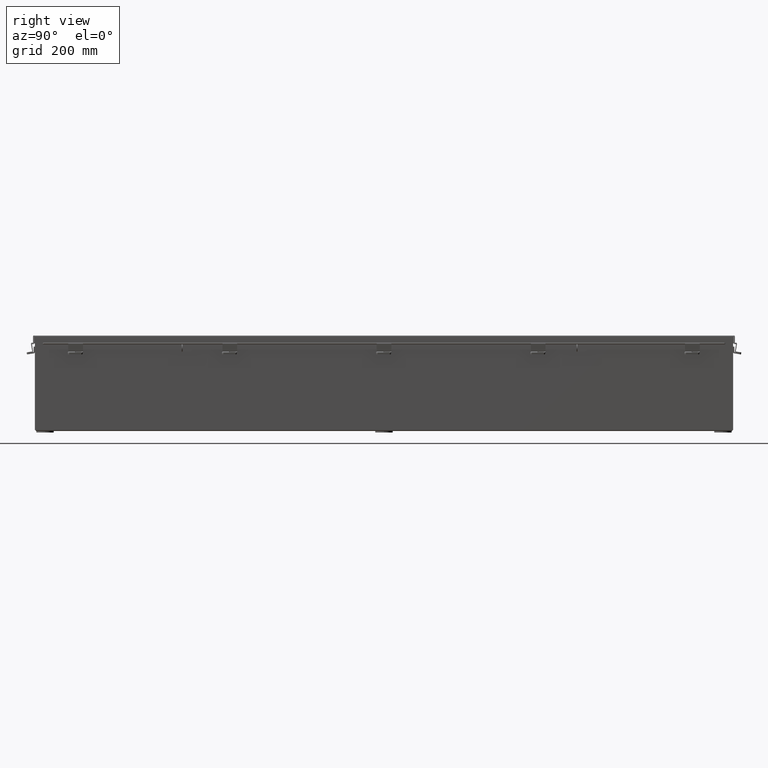
[diagram: clean part render]
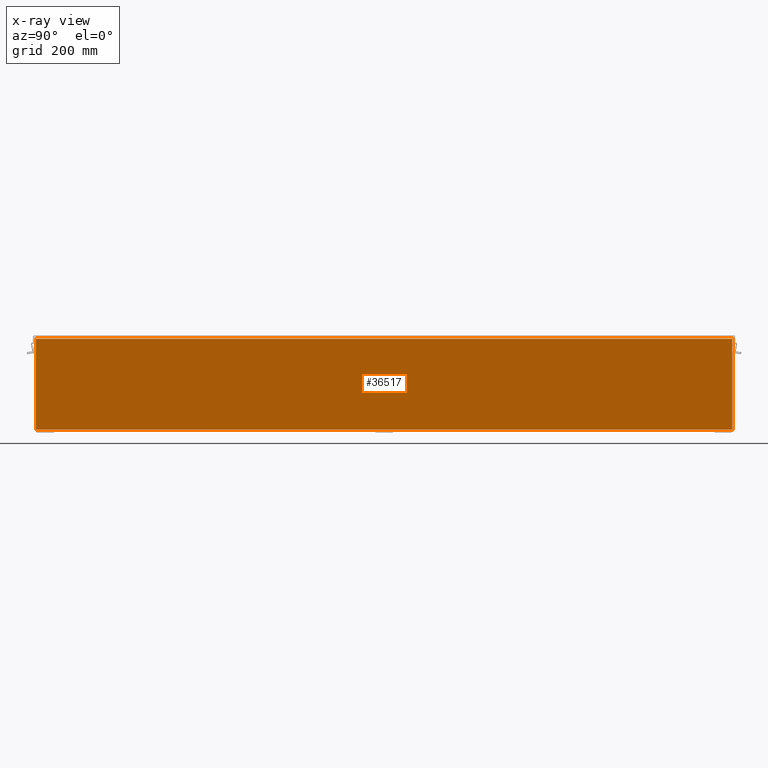
[diagram: x-ray — body ghosted, one internal face saturated and labeled with its STEP entity id]
A machine part, right view, then the same camera in x-ray: the body is ghosted and one INTERNAL B-rep face — a face not visible from any outside direction — is saturated and labeled: STEP entity #36517.
In plain terms, the highlighted planar face has unit normal (-1, 0, 0).
Its self-contained STEP definition (entity closure, byte-faithful):
#596 = LINE ( 'NONE', #42318, #8458 ) ;
#2064 = LINE ( 'NONE', #33826, #18795 ) ;
#2289 = DIRECTION ( 'NONE',  ( -0.0000000000000000000, -1.000000000000000000, -0.0000000000000000000 ) ) ;
#3581 = ORIENTED_EDGE ( 'NONE', *, *, #30103, .F. ) ;
#6311 = CARTESIAN_POINT ( 'NONE',  ( 3.925300000000026700, 29.92530000000001100, 7.850599999999999100 ) ) ;
#7050 = CARTESIAN_POINT ( 'NONE',  ( 3.925299999999999100, 0.0000000000000000000, -1.391535071772734100E-014 ) ) ;
#7083 = DIRECTION ( 'NONE',  ( -3.479795166820706300E-015, -0.0000000000000000000, -1.000000000000000000 ) ) ;
#8458 = VECTOR ( 'NONE', #2289, 39.37007874015748100 ) ;
#9698 = DIRECTION ( 'NONE',  ( 3.479795166820706300E-015, -1.113534453382626100E-015, 1.000000000000000000 ) ) ;
#10444 = DIRECTION ( 'NONE',  ( 3.479795166820706300E-015, 0.0000000000000000000, 1.000000000000000000 ) ) ;
#11141 = VERTEX_POINT ( 'NONE', #40279 ) ;
#11837 = EDGE_CURVE ( 'NONE', #39588, #16380, #2064, .T. ) ;
#14441 = LINE ( 'NONE', #33590, #38990 ) ;
#14484 = EDGE_CURVE ( 'NONE', #16380, #36755, #14441, .T. ) ;
#16380 = VERTEX_POINT ( 'NONE', #17597 ) ;
#17597 = CARTESIAN_POINT ( 'NONE',  ( 3.925299999999999100, -29.92529999999998600, 0.01299999999999929700 ) ) ;
#17610 = LINE ( 'NONE', #6311, #43194 ) ;
#18435 = CARTESIAN_POINT ( 'NONE',  ( 3.925300000000025300, -29.92529999999997900, 7.837599999999999200 ) ) ;
#18795 = VECTOR ( 'NONE', #7083, 39.37007874015748100 ) ;
#22061 = FACE_OUTER_BOUND ( 'NONE', #34484, .T. ) ;
#25855 = ORIENTED_EDGE ( 'NONE', *, *, #40938, .F. ) ;
#26827 = ORIENTED_EDGE ( 'NONE', *, *, #14484, .F. ) ;
#27074 = PLANE ( 'NONE',  #41750 ) ;
#28382 = CARTESIAN_POINT ( 'NONE',  ( 3.925299999999999100, 29.92530000000002100, 0.01299999999999929700 ) ) ;
#29786 = ORIENTED_EDGE ( 'NONE', *, *, #11837, .F. ) ;
#30103 = EDGE_CURVE ( 'NONE', #11141, #39588, #596, .T. ) ;
#30452 = DIRECTION ( 'NONE',  ( -1.000000000000000000, 0.0000000000000000000, 3.479795166820706300E-015 ) ) ;
#33590 = CARTESIAN_POINT ( 'NONE',  ( 3.925299999999999100, -29.92529999999998600, 0.01300000000000011600 ) ) ;
#33826 = CARTESIAN_POINT ( 'NONE',  ( 3.925299999999999100, -29.92529999999998600, 0.0000000000000000000 ) ) ;
#34484 = EDGE_LOOP ( 'NONE', ( #29786, #3581, #25855, #26827 ) ) ;
#36517 = ADVANCED_FACE ( 'NONE', ( #22061 ), #27074, .T. ) ;
#36755 = VERTEX_POINT ( 'NONE', #28382 ) ;
#36933 = DIRECTION ( 'NONE',  ( -9.530001147699521900E-032, 1.000000000000000000, -2.738667275179460900E-017 ) ) ;
#38990 = VECTOR ( 'NONE', #36933, 39.37007874015748100 ) ;
#39588 = VERTEX_POINT ( 'NONE', #18435 ) ;
#40279 = CARTESIAN_POINT ( 'NONE',  ( 3.925300000000026700, 29.92530000000001100, 7.837599999999999200 ) ) ;
#40938 = EDGE_CURVE ( 'NONE', #36755, #11141, #17610, .T. ) ;
#41750 = AXIS2_PLACEMENT_3D ( 'NONE', #7050, #30452, #10444 ) ;
#42318 = CARTESIAN_POINT ( 'NONE',  ( 3.925300000000025300, 29.92530000000000400, 7.837599999999999200 ) ) ;
#43194 = VECTOR ( 'NONE', #9698, 39.37007874015748100 ) ;